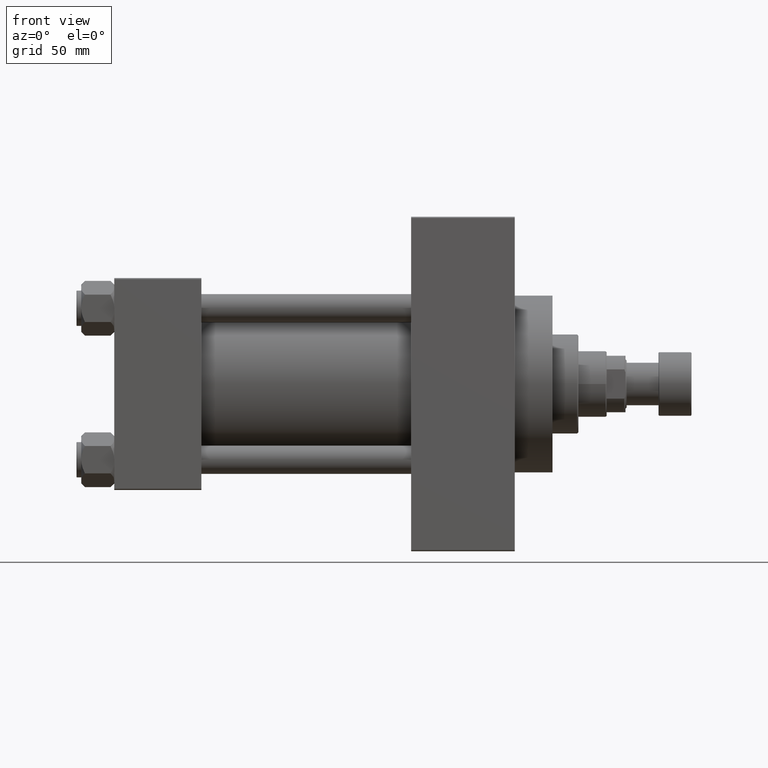
[diagram: clean part render]
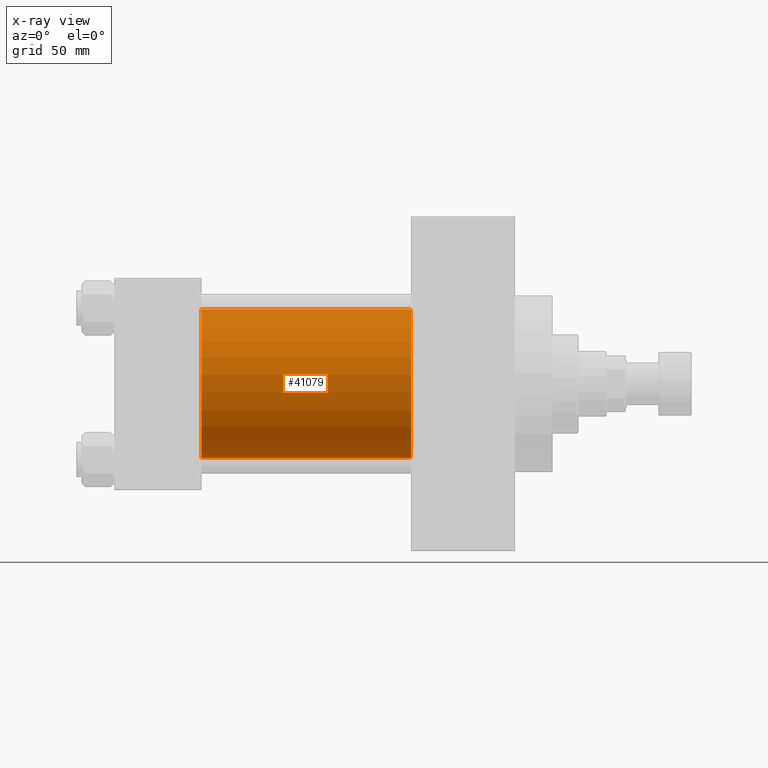
[diagram: x-ray — body ghosted, one internal face saturated and labeled with its STEP entity id]
A machine part, front view, then the same camera in x-ray: the body is ghosted and one INTERNAL B-rep face — a face not visible from any outside direction — is saturated and labeled: STEP entity #41079.
In plain terms, the highlighted cylindrical surface (partial cylindrical patch) has radius 31.5 mm, axis along (-1, -0, -0).
Its self-contained STEP definition (entity closure, byte-faithful):
#166 = CARTESIAN_POINT ( 'NONE',  ( 126.0000000000000000, 1.255552203348951850E-15, -31.50000000000000000 ) ) ;
#2005 = AXIS2_PLACEMENT_3D ( 'NONE', #21622, #24986, #7405 ) ;
#2525 = ORIENTED_EDGE ( 'NONE', *, *, #19528, .F. ) ;
#4143 = VECTOR ( 'NONE', #36125, 1000.000000000000000 ) ;
#4239 = DIRECTION ( 'NONE',  ( 0.000000000000000000, 0.000000000000000000, -1.000000000000000000 ) ) ;
#4960 = CARTESIAN_POINT ( 'NONE',  ( 37.00000000000000000, -2.602085213965210642E-15, 0.000000000000000000 ) ) ;
#6363 = CIRCLE ( 'NONE', #47119, 31.50000000000000000 ) ;
#7405 = DIRECTION ( 'NONE',  ( 0.000000000000000000, 0.000000000000000000, -1.000000000000000000 ) ) ;
#7873 = VERTEX_POINT ( 'NONE', #12799 ) ;
#8387 = EDGE_CURVE ( 'NONE', #20435, #36254, #22788, .T. ) ;
#10318 = VECTOR ( 'NONE', #33725, 1000.000000000000000 ) ;
#12068 = CARTESIAN_POINT ( 'NONE',  ( 126.0000000000000000, -2.602085213965210642E-15, 0.000000000000000000 ) ) ;
#12196 = DIRECTION ( 'NONE',  ( 1.000000000000000000, 0.000000000000000000, 0.000000000000000000 ) ) ;
#12531 = FACE_OUTER_BOUND ( 'NONE', #40218, .T. ) ;
#12799 = CARTESIAN_POINT ( 'NONE',  ( 37.00000000000000000, 1.255552203348951850E-15, -31.50000000000000000 ) ) ;
#14397 = ORIENTED_EDGE ( 'NONE', *, *, #8387, .T. ) ;
#14880 = LINE ( 'NONE', #37065, #4143 ) ;
#17661 = CARTESIAN_POINT ( 'NONE',  ( 126.0000000000000000, 1.255552203348951850E-15, -31.50000000000000000 ) ) ;
#19015 = VERTEX_POINT ( 'NONE', #35138 ) ;
#19528 = EDGE_CURVE ( 'NONE', #19015, #7873, #6363, .T. ) ;
#20435 = VERTEX_POINT ( 'NONE', #41058 ) ;
#21622 = CARTESIAN_POINT ( 'NONE',  ( 126.0000000000000000, -2.602085213965210642E-15, 0.000000000000000000 ) ) ;
#22201 = AXIS2_PLACEMENT_3D ( 'NONE', #12068, #37858, #30607 ) ;
#22788 = CIRCLE ( 'NONE', #2005, 31.50000000000000000 ) ;
#23617 = EDGE_CURVE ( 'NONE', #20435, #19015, #14880, .T. ) ;
#24986 = DIRECTION ( 'NONE',  ( 1.000000000000000000, 0.000000000000000000, 0.000000000000000000 ) ) ;
#26756 = CYLINDRICAL_SURFACE ( 'NONE', #22201, 31.50000000000000000 ) ;
#30607 = DIRECTION ( 'NONE',  ( 0.000000000000000000, 0.000000000000000000, 1.000000000000000000 ) ) ;
#32970 = ORIENTED_EDGE ( 'NONE', *, *, #43705, .T. ) ;
#33600 = ORIENTED_EDGE ( 'NONE', *, *, #23617, .F. ) ;
#33725 = DIRECTION ( 'NONE',  ( -1.000000000000000000, -0.000000000000000000, -0.000000000000000000 ) ) ;
#35138 = CARTESIAN_POINT ( 'NONE',  ( 37.00000000000000000, -2.602085213965210642E-15, 31.50000000000000000 ) ) ;
#35999 = LINE ( 'NONE', #17661, #10318 ) ;
#36125 = DIRECTION ( 'NONE',  ( -1.000000000000000000, -0.000000000000000000, -0.000000000000000000 ) ) ;
#36254 = VERTEX_POINT ( 'NONE', #166 ) ;
#37065 = CARTESIAN_POINT ( 'NONE',  ( 126.0000000000000000, -2.602085213965210642E-15, 31.50000000000000000 ) ) ;
#37858 = DIRECTION ( 'NONE',  ( -1.000000000000000000, -0.000000000000000000, -0.000000000000000000 ) ) ;
#40218 = EDGE_LOOP ( 'NONE', ( #14397, #32970, #2525, #33600 ) ) ;
#41058 = CARTESIAN_POINT ( 'NONE',  ( 126.0000000000000000, -2.602085213965210642E-15, 31.50000000000000000 ) ) ;
#41079 = ADVANCED_FACE ( 'NONE', ( #12531 ), #26756, .F. ) ;
#43705 = EDGE_CURVE ( 'NONE', #36254, #7873, #35999, .T. ) ;
#47119 = AXIS2_PLACEMENT_3D ( 'NONE', #4960, #12196, #4239 ) ;